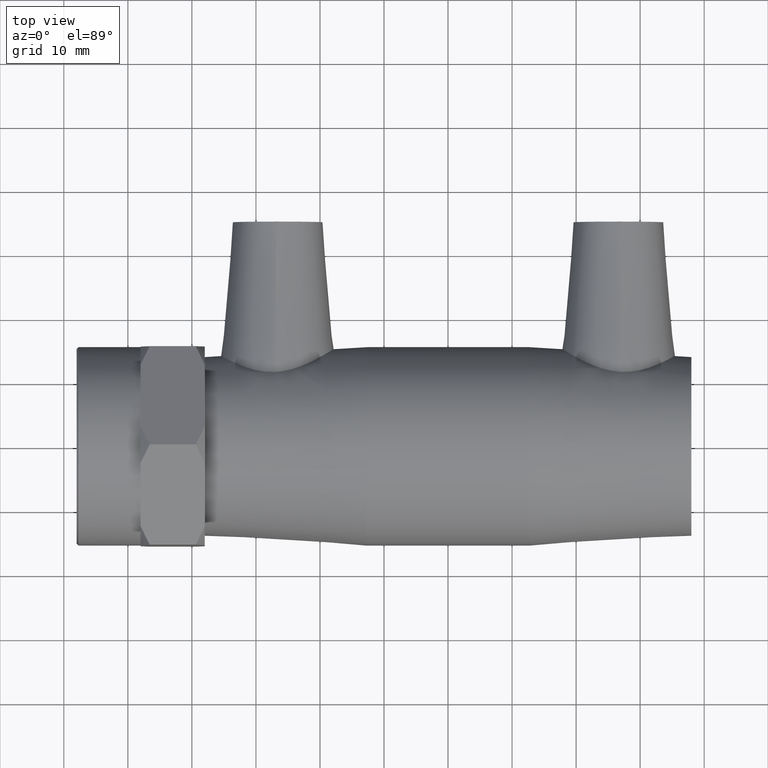
[diagram: clean part render]
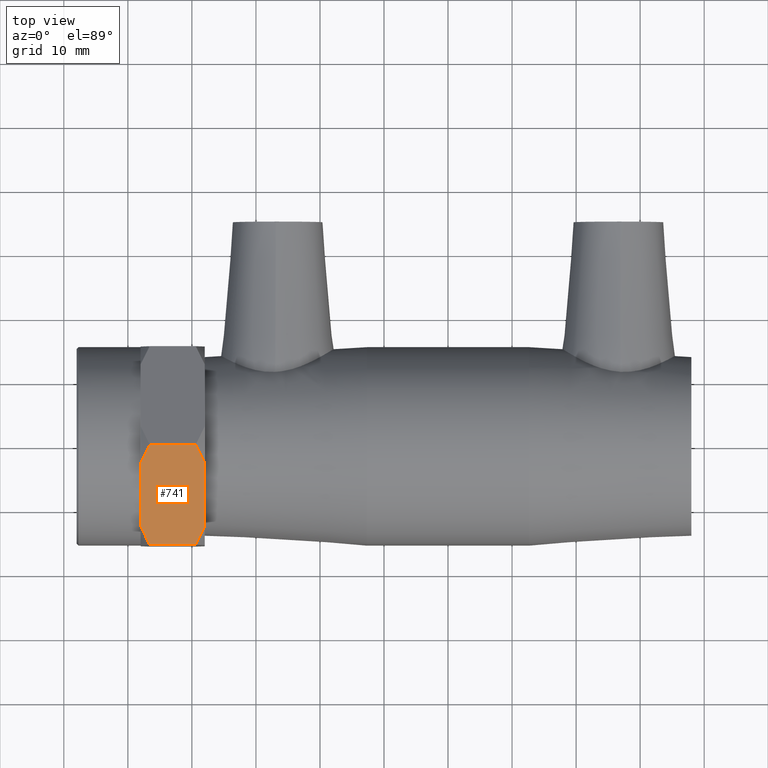
[diagram: same view with one face highlighted and labeled with its STEP entity id]
A machine part, top view. The second image highlights one B-rep face of the part: STEP entity #741.
In plain terms, the highlighted planar face has unit normal (0, -0.5, 0.866).
Its self-contained STEP definition (entity closure, byte-faithful):
#22=LINE('',#1270,#46);
#23=LINE('',#1272,#47);
#34=LINE('',#1288,#58);
#37=LINE('',#1292,#61);
#38=LINE('',#1293,#62);
#46=VECTOR('',#974,5.6506043895917);
#47=VECTOR('',#977,5.6506043895917);
#58=VECTOR('',#998,7.20000000000001);
#61=VECTOR('',#1003,7.2);
#62=VECTOR('',#1004,11.3012087791834);
#67=(
BOUNDED_CURVE()
B_SPLINE_CURVE(2,(#1144,#1145,#1146),.UNSPECIFIED.,.F.,.F.)
B_SPLINE_CURVE_WITH_KNOTS((3,3),(0.,0.358514613542281),.UNSPECIFIED.)
CURVE()
GEOMETRIC_REPRESENTATION_ITEM()
RATIONAL_B_SPLINE_CURVE((1.,1.0046297335501,1.))
REPRESENTATION_ITEM('')
);
#72=(
BOUNDED_CURVE()
B_SPLINE_CURVE(2,(#1170,#1171,#1172),.UNSPECIFIED.,.F.,.F.)
B_SPLINE_CURVE_WITH_KNOTS((3,3),(0.,0.358514613542282),.UNSPECIFIED.)
CURVE()
GEOMETRIC_REPRESENTATION_ITEM()
RATIONAL_B_SPLINE_CURVE((1.,1.00462973355018,1.))
REPRESENTATION_ITEM('')
);
#78=(
BOUNDED_CURVE()
B_SPLINE_CURVE(2,(#1204,#1205,#1206),.UNSPECIFIED.,.F.,.F.)
B_SPLINE_CURVE_WITH_KNOTS((3,3),(0.,0.358514613542283),.UNSPECIFIED.)
CURVE()
GEOMETRIC_REPRESENTATION_ITEM()
RATIONAL_B_SPLINE_CURVE((1.,1.00462973355015,1.))
REPRESENTATION_ITEM('')
);
#79=(
BOUNDED_CURVE()
B_SPLINE_CURVE(2,(#1210,#1211,#1212),.UNSPECIFIED.,.F.,.F.)
B_SPLINE_CURVE_WITH_KNOTS((3,3),(0.,0.358514613542283),.UNSPECIFIED.)
CURVE()
GEOMETRIC_REPRESENTATION_ITEM()
RATIONAL_B_SPLINE_CURVE((1.,1.00462973355003,1.))
REPRESENTATION_ITEM('')
);
#110=PLANE('',#824);
#182=FACE_OUTER_BOUND('',#244,.T.);
#244=EDGE_LOOP('',(#610,#611,#612,#613,#614,#615,#616,#617,#618));
#349=VERTEX_POINT('',#1125);
#354=VERTEX_POINT('',#1142);
#355=VERTEX_POINT('',#1143);
#360=VERTEX_POINT('',#1164);
#362=VERTEX_POINT('',#1169);
#370=VERTEX_POINT('',#1198);
#371=VERTEX_POINT('',#1202);
#372=VERTEX_POINT('',#1208);
#373=VERTEX_POINT('',#1209);
#425=EDGE_CURVE('',#354,#355,#67,.T.);
#432=EDGE_CURVE('',#362,#360,#72,.T.);
#442=EDGE_CURVE('',#370,#371,#78,.T.);
#443=EDGE_CURVE('',#372,#373,#79,.T.);
#463=EDGE_CURVE('',#349,#355,#22,.T.);
#464=EDGE_CURVE('',#362,#349,#23,.T.);
#475=EDGE_CURVE('',#373,#354,#34,.T.);
#478=EDGE_CURVE('',#370,#360,#37,.T.);
#479=EDGE_CURVE('',#371,#372,#38,.T.);
#610=ORIENTED_EDGE('',*,*,#425,.T.);
#611=ORIENTED_EDGE('',*,*,#463,.F.);
#612=ORIENTED_EDGE('',*,*,#464,.F.);
#613=ORIENTED_EDGE('',*,*,#432,.T.);
#614=ORIENTED_EDGE('',*,*,#478,.F.);
#615=ORIENTED_EDGE('',*,*,#442,.T.);
#616=ORIENTED_EDGE('',*,*,#479,.T.);
#617=ORIENTED_EDGE('',*,*,#443,.T.);
#618=ORIENTED_EDGE('',*,*,#475,.T.);
#741=ADVANCED_FACE('',(#182),#110,.T.);
#824=AXIS2_PLACEMENT_3D('',#1291,#1001,#1002);
#974=DIRECTION('',(0.,0.866025403784439,0.5));
#977=DIRECTION('',(0.,0.866025403784439,0.5));
#998=DIRECTION('',(-1.,0.,0.));
#1001=DIRECTION('center_axis',(0.,-0.5,0.866025403784439));
#1002=DIRECTION('ref_axis',(0.,0.866025403784439,0.5));
#1003=DIRECTION('',(-1.,0.,0.));
#1004=DIRECTION('',(0.,0.866025403784439,0.5));
#1125=CARTESIAN_POINT('',(-48.,-7.75,13.4233937586588));
#1142=CARTESIAN_POINT('',(-46.6,0.,17.8978583448784));
#1143=CARTESIAN_POINT('',(-48.,-2.85643305187773,16.2486959534547));
#1144=CARTESIAN_POINT('Ctrl Pts',(-46.6,-5.54597830334084E-14,17.8978583448784));
#1145=CARTESIAN_POINT('Ctrl Pts',(-47.4581439118026,-1.4863488554481,17.0397144330758));
#1146=CARTESIAN_POINT('Ctrl Pts',(-48.,-2.85643305187774,16.2486959534547));
#1164=CARTESIAN_POINT('',(-46.6,-15.5,8.94892917243924));
#1169=CARTESIAN_POINT('',(-48.,-12.6435669481223,10.598091563863));
#1170=CARTESIAN_POINT('Ctrl Pts',(-48.,-12.6435669481223,10.598091563863));
#1171=CARTESIAN_POINT('Ctrl Pts',(-47.4581439118026,-14.0136511445519,9.80707308424185));
#1172=CARTESIAN_POINT('Ctrl Pts',(-46.6,-15.4999999999999,8.94892917243924));
#1198=CARTESIAN_POINT('',(-39.4,-15.5,8.94892917243924));
#1202=CARTESIAN_POINT('',(-38.,-12.6435669481223,10.598091563863));
#1204=CARTESIAN_POINT('Ctrl Pts',(-39.4,-15.5,8.94892917243923));
#1205=CARTESIAN_POINT('Ctrl Pts',(-38.5418560881974,-14.013651144552,9.80707308424183));
#1206=CARTESIAN_POINT('Ctrl Pts',(-38.,-12.6435669481223,10.598091563863));
#1208=CARTESIAN_POINT('',(-38.,-2.85643305187773,16.2486959534547));
#1209=CARTESIAN_POINT('',(-39.4,0.,17.8978583448784));
#1210=CARTESIAN_POINT('Ctrl Pts',(-38.,-2.85643305187774,16.2486959534547));
#1211=CARTESIAN_POINT('Ctrl Pts',(-38.5418560881974,-1.48634885544805,17.0397144330758));
#1212=CARTESIAN_POINT('Ctrl Pts',(-39.4,-4.27502494215856E-14,17.8978583448784));
#1270=CARTESIAN_POINT('',(-48.,-15.5,8.94892917243919));
#1272=CARTESIAN_POINT('',(-48.,-15.5,8.94892917243919));
#1288=CARTESIAN_POINT('',(-38.,-4.16597319987434E-14,17.8978583448784));
#1291=CARTESIAN_POINT('Origin',(-38.,-15.5,8.94892917243919));
#1292=CARTESIAN_POINT('',(-38.,-15.5,8.94892917243919));
#1293=CARTESIAN_POINT('',(-38.,-15.5,8.94892917243919));